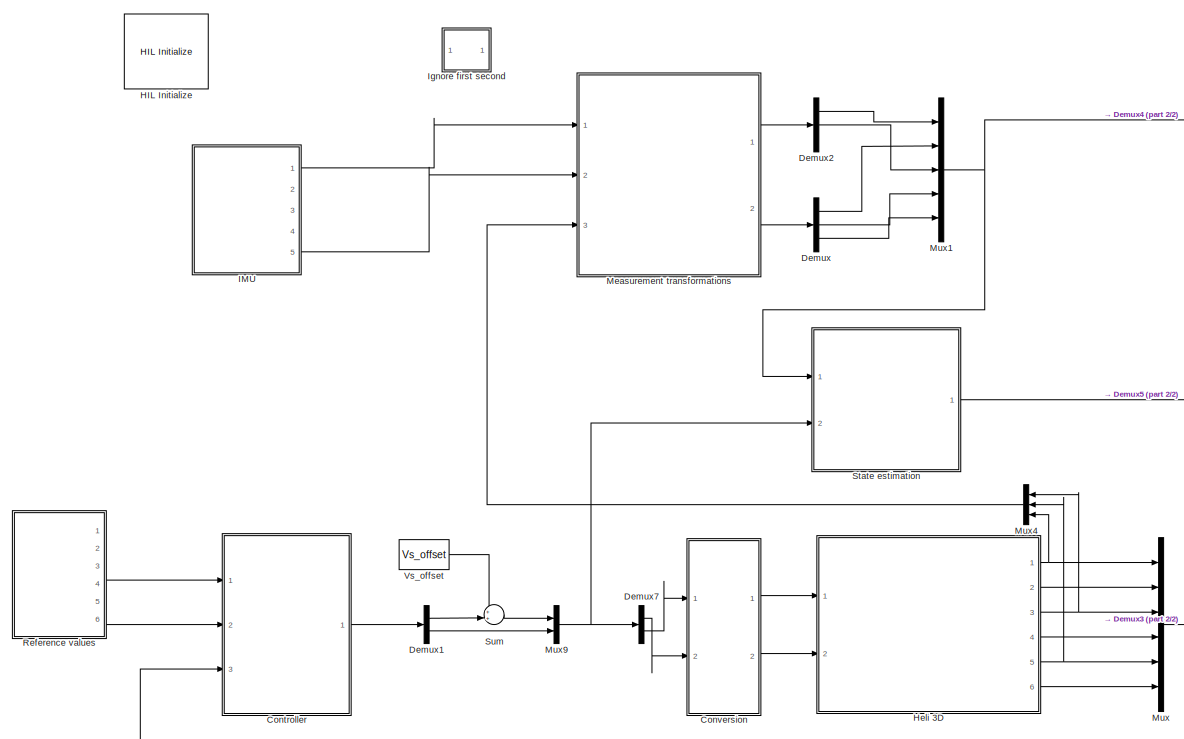
[diagram: root canvas - part 1/2, center side, full height]
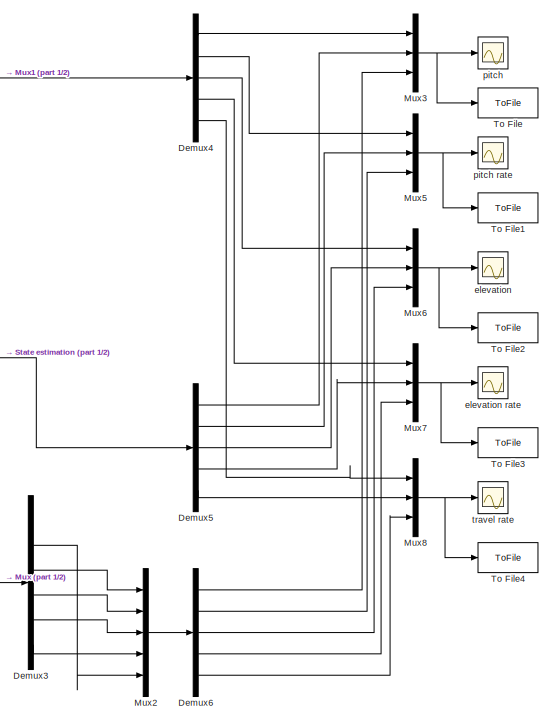
[diagram: root canvas - part 2/2, right side, full height]
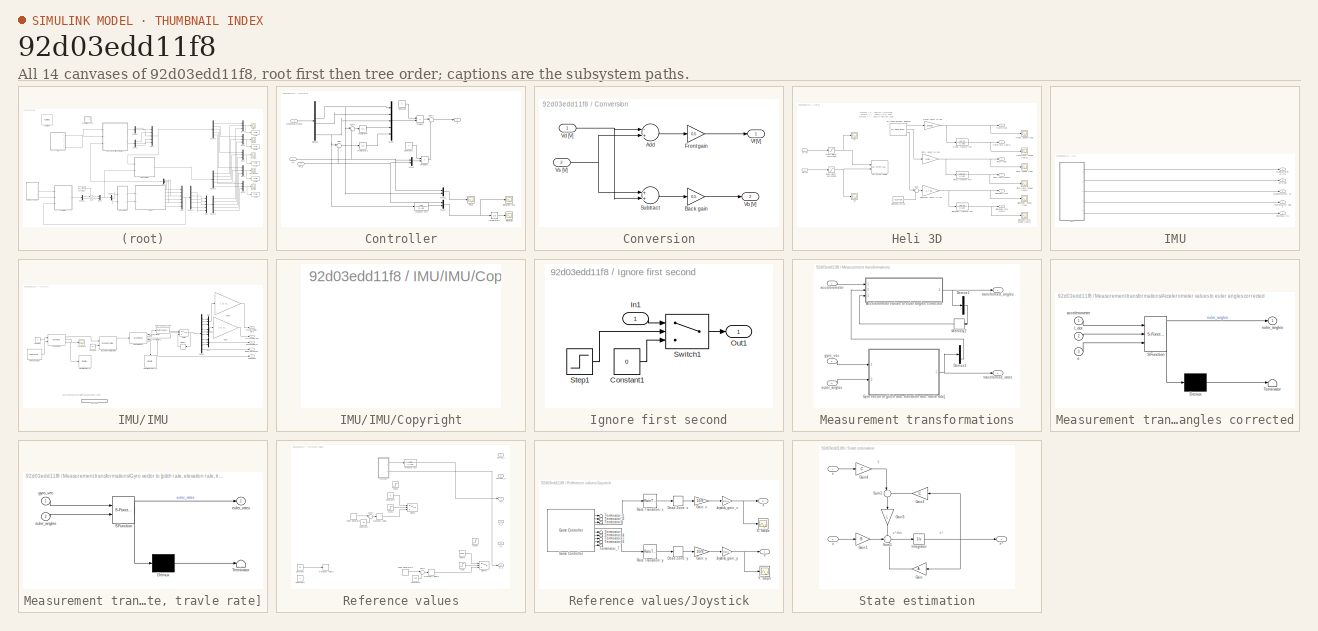
[diagram: thumbnail index - all 14 canvases of the model, root first then tree order]
MODEL slx_92d03edd11f8
KIND model
CONFIG AbsTol = auto
CONFIG FixedStep = 0.002
CONFIG MaxStep = auto
CONFIG MinStep = auto
CONFIG PostLoadFcn = qc_set_target_type(getConfigSet(bdroot, 'QUARC Default Target Configuration'));
CONFIG RelTol = 1e-3
CONFIG SampleTimeConstraint = Unconstrained
CONFIG Solver = ode1
CONFIG SolverMode = Auto
CONFIG SolverName = ode1
CONFIG StartTime = 0.0
CONFIG StopTime = inf
BLOCK [SubSystem] Controller
  Ports = [3, 1]
  RequestExecContextInheritance = off
  Variant = off
BLOCK [Constant] Controller/Constant
  Value = K
BLOCK [Constant] Controller/Constant1
  Value = F
BLOCK [Demux] Controller/Demux
  DisplayOption = bar
  Outputs = 6
  Ports = [1, 6]
BLOCK [Scope] Controller/Elevation
  Ports = [1]
  ScopeSpecificationString = Simulink.scopes.TimeScopeBlockCfg('CurrentConfiguration', extmgr.ConfigurationSet(extmgr.Configuration('Core','General UI',true),extmgr.Configuration('Core','Source UI',true),extmgr.Configuration('Sources','WiredSimulink',true,'DataLoggingVariableName','ScopeData2'),extmgr.Configuration('Visuals','Time Domain',true,'SerializedDisplays',{struct('MinYLimReal','-0.79865','MaxYLimReal','2.37607','YLab...<+1488ch>
BLOCK [Scope] Controller/Elevation rate
  Ports = [1]
  ScopeSpecificationString = Simulink.scopes.TimeScopeBlockCfg('CurrentConfiguration', extmgr.ConfigurationSet(extmgr.Configuration('Core','General UI',true),extmgr.Configuration('Core','Source UI',true),extmgr.Configuration('Sources','WiredSimulink',true,'DataLoggingVariableName','ScopeData1'),extmgr.Configuration('Visuals','Time Domain',true,'SerializedDisplays',{struct('MinYLimReal','-3.81189','MaxYLimReal','0.55908','YLab...<+1450ch>
BLOCK [Integrator] Controller/Integrator
  Ports = [1, 1]
BLOCK [Integrator] Controller/Integrator1
  Ports = [1, 1]
BLOCK [Integrator] Controller/Integrator2
  Ports = [1, 1]
BLOCK [Inport] Controller/Measured states
  IconDisplay = Port number
  Port = 3
BLOCK [Mux] Controller/Mux1
  DisplayOption = bar
  Inputs = 2
  Ports = [2, 1]
BLOCK [Mux] Controller/Mux2
  DisplayOption = bar
  Inputs = 5
  Ports = [5, 1]
BLOCK [Mux] Controller/Mux3
  DisplayOption = bar
  Inputs = 2
  Ports = [2, 1]
BLOCK [Mux] Controller/Mux4
  DisplayOption = bar
  Inputs = 2
  Ports = [2, 1]
BLOCK [Scope] Controller/Pitch
  Ports = [1]
  ScopeSpecificationString = Simulink.scopes.TimeScopeBlockCfg('CurrentConfiguration', extmgr.ConfigurationSet(extmgr.Configuration('Core','General UI',true),extmgr.Configuration('Core','Source UI',true),extmgr.Configuration('Sources','WiredSimulink',true,'DataLoggingVariableName','ScopeData1'),extmgr.Configuration('Visuals','Time Domain',true,'SerializedDisplays',{struct('MinYLimReal','-0.24045','MaxYLimReal','1.99533','YLab...<+1473ch>
BLOCK [Product] Controller/Product
  InputSameDT = off
  Multiplication = Matrix(*)
  OutDataTypeStr = Inherit: Inherit via internal rule
  Ports = [2, 1]
  RndMeth = Floor
  SaturateOnIntegerOverflow = off
BLOCK [Product] Controller/Product1
  InputSameDT = off
  Multiplication = Matrix(*)
  OutDataTypeStr = Inherit: Inherit via internal rule
  Ports = [2, 1]
  RndMeth = Floor
  SaturateOnIntegerOverflow = off
BLOCK [Sum] Controller/Sum
  IconShape = round
  InputSameDT = off
  Inputs = |+-
  OutDataTypeStr = Inherit: Inherit via internal rule
  Ports = [2, 1]
  SaturateOnIntegerOverflow = off
BLOCK [Sum] Controller/Sum1
  IconShape = round
  InputSameDT = off
  Inputs = |-+
  OutDataTypeStr = Inherit: Inherit via internal rule
  Ports = [2, 1]
  SaturateOnIntegerOverflow = off
BLOCK [Sum] Controller/Sum2
  IconShape = round
  InputSameDT = off
  Inputs = |+-
  OutDataTypeStr = Inherit: Inherit via internal rule
  Ports = [2, 1]
  SaturateOnIntegerOverflow = off
BLOCK [TransferFcn] Controller/Transfer Fcn
  Denominator = [1 10]
  Numerator = [10]
BLOCK [Inport] Controller/e*_c
  IconDisplay = Port number
  Port = 2
BLOCK [Inport] Controller/p_c
  IconDisplay = Port number
BLOCK [Outport] Controller/u
  IconDisplay = Port number
BLOCK [SubSystem] Conversion
  Ports = [2, 2]
  RequestExecContextInheritance = off
  Variant = off
BLOCK [Sum] Conversion/Add
  InputSameDT = off
  Inputs = -+
  OutDataTypeStr = Inherit: Inherit via internal rule
  Ports = [2, 1]
  SaturateOnIntegerOverflow = off
BLOCK [Gain] Conversion/Back gain
  Gain = 0.5
  OutDataTypeStr = Inherit: Inherit via internal rule
  ParamDataTypeStr = Inherit: Inherit via internal rule
  SaturateOnIntegerOverflow = off
BLOCK [Gain] Conversion/Front gain
  Gain = 0.5
  OutDataTypeStr = Inherit: Inherit via internal rule
  ParamDataTypeStr = Inherit: Inherit via internal rule
  SaturateOnIntegerOverflow = off
BLOCK [Sum] Conversion/Subtract
  InputSameDT = off
  OutDataTypeStr = Inherit: Inherit via internal rule
  Ports = [2, 1]
  SaturateOnIntegerOverflow = off
BLOCK [Outport] Conversion/Vb [V]
  IconDisplay = Port number
  Port = 2
BLOCK [Inport] Conversion/Vd [V]
  IconDisplay = Port number
BLOCK [Outport] Conversion/Vf [V]
  IconDisplay = Port number
BLOCK [Inport] Conversion/Vs [V]
  IconDisplay = Port number
  Port = 2
BLOCK [Demux] Demux
  DisplayOption = bar
  Outputs = 3
  Ports = [1, 3]
BLOCK [Demux] Demux1
  DisplayOption = bar
  Outputs = 2
  Ports = [1, 2]
BLOCK [Demux] Demux2
  DisplayOption = bar
  Outputs = 3
  Ports = [1, 3]
BLOCK [Demux] Demux3
  DisplayOption = bar
  Outputs = 6
  Ports = [1, 6]
BLOCK [Demux] Demux4
  DisplayOption = bar
  Outputs = 5
  Ports = [1, 5]
BLOCK [Demux] Demux5
  DisplayOption = bar
  Outputs = 5
  Ports = [1, 5]
BLOCK [Demux] Demux6
  DisplayOption = bar
  Outputs = 5
  Ports = [1, 5]
BLOCK [Demux] Demux7
  DisplayOption = bar
  Outputs = 2
  Ports = [1, 2]
BLOCK [Reference] HIL Initialize  REF=quarc_library/Data Acquisition/Generic/Configuration/HIL Initialize
  AttributesFormatString = %<object_name> (%<board_type>-%<board_number>)
  Ports = []
  Priority = -99
  SourceBlock = quarc_library/Data Acquisition/Generic/Configuration/HIL Initialize
  SourceType = HIL Initialize
  UserDataPersistent = on
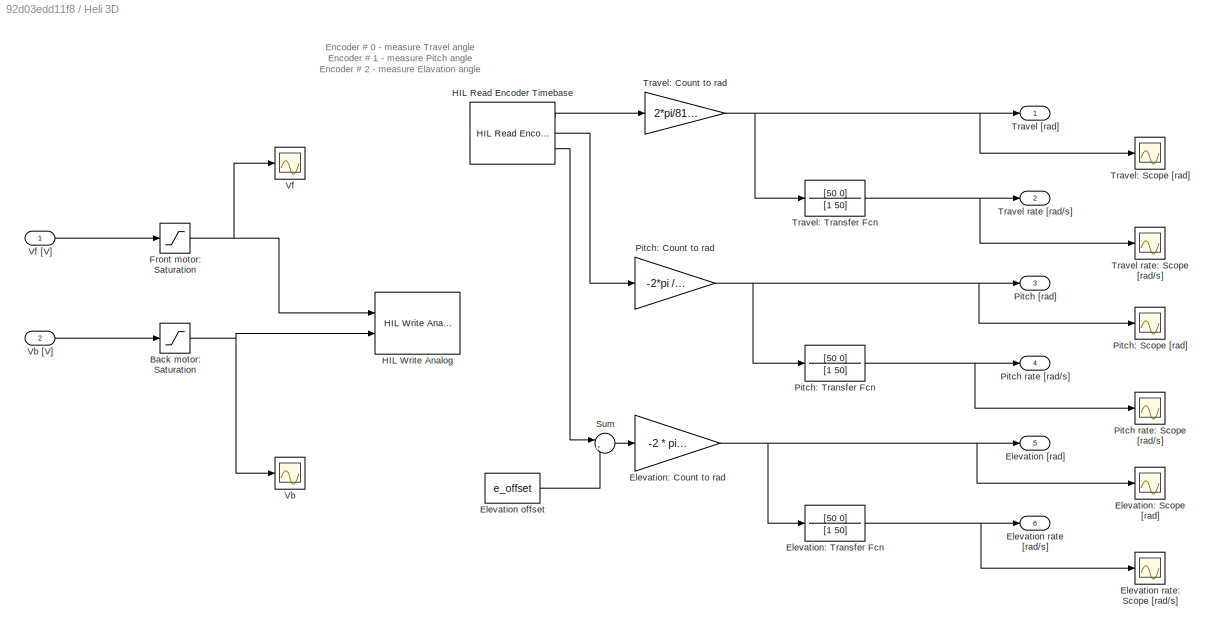
BLOCK [SubSystem] Heli 3D
  Ports = [2, 6]
  RequestExecContextInheritance = off
  Variant = off
BLOCK [Saturate] Heli 3D/Back motor: Saturation
  InputPortMap = u0
  LowerLimit = -5
  Ports = [1, 1]
  UpperLimit = 5
BLOCK [Outport] Heli 3D/Elevation [rad]
  IconDisplay = Port number
  Port = 5
BLOCK [Constant] Heli 3D/Elevation offset
  Value = e_offset
BLOCK [Outport] Heli 3D/Elevation rate [rad//s]
  IconDisplay = Port number
  Port = 6
BLOCK [Scope] Heli 3D/Elevation rate: Scope [rad//s]
  Ports = [1]
  ScopeSpecificationString = Simulink.scopes.TimeScopeBlockCfg('CurrentConfiguration', extmgr.ConfigurationSet(extmgr.Configuration('Core','General UI',true),extmgr.Configuration('Core','Source UI',true),extmgr.Configuration('Sources','WiredSimulink',true,'DataLoggingVariableName','ScopeData13','DataLoggingSaveFormat','StructureWithTime','DataLoggingLimitDataPoints',true,'DataLoggingDecimation','1','DataLoggingDecimateData',t...<+1740ch>
BLOCK [Gain] Heli 3D/Elevation: Count to rad
  Gain = -2 * pi /4096
  OutDataTypeStr = Inherit: Inherit via internal rule
  ParamDataTypeStr = Inherit: Inherit via internal rule
  SaturateOnIntegerOverflow = off
BLOCK [Scope] Heli 3D/Elevation: Scope [rad]
  Ports = [1]
  ScopeSpecificationString = Simulink.scopes.TimeScopeBlockCfg('CurrentConfiguration', extmgr.ConfigurationSet(extmgr.Configuration('Core','General UI',true),extmgr.Configuration('Core','Source UI',true),extmgr.Configuration('Sources','WiredSimulink',true,'DataLoggingVariableName','ScopeData12','DataLoggingSaveFormat','StructureWithTime','DataLoggingLimitDataPoints',true,'DataLoggingDecimation','1','DataLoggingDecimateData',t...<+1766ch>
BLOCK [TransferFcn] Heli 3D/Elevation: Transfer Fcn
  Denominator = [1 50]
  Numerator = [50 0]
BLOCK [Saturate] Heli 3D/Front motor: Saturation
  InputPortMap = u0
  LowerLimit = -5
  Ports = [1, 1]
  UpperLimit = 5
BLOCK [Reference] Heli 3D/HIL Read Encoder Timebase  REF=quarc_library/Data Acquisition/Generic/Timebases/HIL Read Encoder
Timebase
  AttributesFormatString = (%<object_name>)
  Ports = [0, 3]
  SourceBlock = quarc_library/Data Acquisition/Generic/Timebases/HIL Read Encoder\nTimebase
  SourceType = HIL Read Encoder Timebase
  UserDataPersistent = on
BLOCK [Reference] Heli 3D/HIL Write Analog  REF=quarc_library/Data Acquisition/Generic/Immediate I//O/HIL Write Analog
  AttributesFormatString = (%<object_name>)
  Ports = [2]
  SourceBlock = quarc_library/Data Acquisition/Generic/Immediate I//O/HIL Write Analog
  SourceType = HIL Write Analog
  UserDataPersistent = on
BLOCK [Outport] Heli 3D/Pitch [rad]
  IconDisplay = Port number
  Port = 3
BLOCK [Outport] Heli 3D/Pitch rate [rad//s]
  IconDisplay = Port number
  Port = 4
BLOCK [Scope] Heli 3D/Pitch rate: Scope [rad//s]
  Ports = [1]
  ScopeSpecificationString = Simulink.scopes.TimeScopeBlockCfg('CurrentConfiguration', extmgr.ConfigurationSet(extmgr.Configuration('Core','General UI',true),extmgr.Configuration('Core','Source UI',true),extmgr.Configuration('Sources','WiredSimulink',true,'DataLoggingVariableName','ScopeData11','DataLoggingSaveFormat','StructureWithTime','DataLoggingLimitDataPoints',true,'DataLoggingDecimation','1','DataLoggingDecimateData',t...<+1672ch>
BLOCK [Gain] Heli 3D/Pitch: Count to rad
  Gain = -2*pi /4096
  OutDataTypeStr = Inherit: Inherit via internal rule
  ParamDataTypeStr = Inherit: Inherit via internal rule
  SaturateOnIntegerOverflow = off
BLOCK [Scope] Heli 3D/Pitch: Scope [rad]
  Ports = [1]
  ScopeSpecificationString = Simulink.scopes.TimeScopeBlockCfg('CurrentConfiguration', extmgr.ConfigurationSet(extmgr.Configuration('Core','General UI',true),extmgr.Configuration('Core','Source UI',true),extmgr.Configuration('Sources','WiredSimulink',true,'DataLoggingVariableName','ScopeData10','DataLoggingSaveFormat','StructureWithTime','DataLoggingLimitDataPoints',true,'DataLoggingDecimation','1','DataLoggingDecimateData',t...<+1671ch>
BLOCK [TransferFcn] Heli 3D/Pitch: Transfer Fcn
  Denominator = [1 50]
  Numerator = [50 0]
BLOCK [Sum] Heli 3D/Sum
  IconShape = round
  InputSameDT = off
  Inputs = |+-
  OutDataTypeStr = Inherit: Inherit via internal rule
  Ports = [2, 1]
  SaturateOnIntegerOverflow = off
BLOCK [Outport] Heli 3D/Travel [rad]
  IconDisplay = Port number
BLOCK [Outport] Heli 3D/Travel rate [rad//s]
  IconDisplay = Port number
  Port = 2
BLOCK [Scope] Heli 3D/Travel rate: Scope [rad//s]
  Ports = [1]
  ScopeSpecificationString = Simulink.scopes.TimeScopeBlockCfg('CurrentConfiguration', extmgr.ConfigurationSet(extmgr.Configuration('Core','General UI',true),extmgr.Configuration('Core','Source UI',true),extmgr.Configuration('Sources','WiredSimulink',true,'DataLoggingVariableName','ScopeData9','DataLoggingSaveFormat','StructureWithTime','DataLoggingLimitDataPoints',true,'DataLoggingDecimation','1','DataLoggingDecimateData',tr...<+1652ch>
BLOCK [Gain] Heli 3D/Travel: Count to rad
  Gain = 2*pi/8192
  OutDataTypeStr = Inherit: Inherit via internal rule
  ParamDataTypeStr = Inherit: Inherit via internal rule
  SaturateOnIntegerOverflow = off
BLOCK [Scope] Heli 3D/Travel: Scope [rad]
  Ports = [1]
  ScopeSpecificationString = Simulink.scopes.TimeScopeBlockCfg('CurrentConfiguration', extmgr.ConfigurationSet(extmgr.Configuration('Core','General UI',true),extmgr.Configuration('Core','Source UI',true),extmgr.Configuration('Sources','WiredSimulink',true,'DataLoggingVariableName','ScopeData8','DataLoggingSaveFormat','StructureWithTime','DataLoggingLimitDataPoints',true,'DataLoggingDecimation','1','DataLoggingDecimateData',tr...<+1672ch>
BLOCK [TransferFcn] Heli 3D/Travel: Transfer Fcn
  Denominator = [1 50]
  Numerator = [50 0]
BLOCK [Scope] Heli 3D/Vb
  Ports = [1]
  ScopeSpecificationString = Simulink.scopes.TimeScopeBlockCfg('CurrentConfiguration', extmgr.ConfigurationSet(extmgr.Configuration('Core','General UI',true),extmgr.Configuration('Core','Source UI',true),extmgr.Configuration('Sources','WiredSimulink',true,'DataLoggingVariableName','ScopeData2'),extmgr.Configuration('Visuals','Time Domain',true,'SerializedDisplays',{struct('MinYLimReal','-0.38643','MaxYLimReal','5.59849','YLab...<+1438ch>
BLOCK [Inport] Heli 3D/Vb [V]
  IconDisplay = Port number
  Port = 2
BLOCK [Scope] Heli 3D/Vf
  Ports = [1]
  ScopeSpecificationString = Simulink.scopes.TimeScopeBlockCfg('CurrentConfiguration', extmgr.ConfigurationSet(extmgr.Configuration('Core','General UI',true),extmgr.Configuration('Core','Source UI',true),extmgr.Configuration('Sources','WiredSimulink',true,'DataLoggingVariableName','ScopeData1'),extmgr.Configuration('Visuals','Time Domain',true,'SerializedDisplays',{struct('MinYLimReal','-0.2096','MaxYLimReal','5.57884','YLabe...<+1477ch>
BLOCK [Inport] Heli 3D/Vf [V]
  IconDisplay = Port number
BLOCK [SubSystem] IMU
  Ports = [0, 5]
  RequestExecContextInheritance = off
  Variant = off
BLOCK [Outport] IMU/Accelerometer, m//s^2
  IconDisplay = Port number
BLOCK [SubSystem] IMU/IMU
  Ports = [0, 5]
  RequestExecContextInheritance = off
  Variant = off
BLOCK [Scope] IMU/IMU/Connected
  Ports = [1]
  ScopeSpecificationString = Simulink.scopes.TimeScopeBlockCfg('CurrentConfiguration', extmgr.ConfigurationSet(extmgr.Configuration('Core','General UI',true),extmgr.Configuration('Core','Source UI',true),extmgr.Configuration('Sources','WiredSimulink',true,'DataLoggingSaveFormat','StructureWithTime','DataLoggingLimitDataPoints',true,'DataLoggingDecimation','1','DataLoggingDecimateData',true,'DataLoggingVariableName','ScopeData...<+909ch>
BLOCK [Constant] IMU/IMU/Constant
  Value = 0
BLOCK [Constant] IMU/IMU/Constant1
  Value = 65
BLOCK [SubSystem] IMU/IMU/<copyright redacted>
  OpenFcn = web('http://www.quanser.com/');
  Permissions = NoReadOrWrite
  PermitHierarchicalResolution = None
  Ports = []
  RequestExecContextInheritance = off
  Variant = off
BLOCK [DataTypeConversion] IMU/IMU/Data Type Conversion
  OutDataTypeStr = double
  RndMeth = Floor
  SaturateOnIntegerOverflow = off
BLOCK [Demux] IMU/IMU/Demux
  DisplayOption = bar
  Outputs = 10
  Ports = [1, 10]
BLOCK [Gain] IMU/IMU/Gain1
  Gain = [ 0, 0, 1; 0, 1, 0; -1, 0, 0]
  Multiplication = Matrix(K*u) (u vector)
  OutDataTypeStr = Inherit: Inherit via internal rule
  ParamDataTypeStr = Inherit: Inherit via internal rule
  SaturateOnIntegerOverflow = off
BLOCK [Gain] IMU/IMU/Gain2
  Gain = [ 0, 0, 1; 0, 1, 0; -1, 0, 0]
  Multiplication = Matrix(K*u) (u vector)
  OutDataTypeStr = Inherit: Inherit via internal rule
  ParamDataTypeStr = Inherit: Inherit via internal rule
  SaturateOnIntegerOverflow = off
BLOCK [Memory] IMU/IMU/Memory
  X0 = [0 0 0 0 0 0 0 0 0 0]
BLOCK [Mux] IMU/IMU/Mux
  DisplayOption = bar
  Inputs = 3
  Ports = [3, 1]
BLOCK [Mux] IMU/IMU/Mux1
  DisplayOption = bar
  Inputs = 3
  Ports = [3, 1]
BLOCK [Mux] IMU/IMU/Mux2
  DisplayOption = bar
  Inputs = 3
  Ports = [3, 1]
BLOCK [Outport] IMU/IMU/New data, 0//1
  IconDisplay = Port number
  Port = 5
BLOCK [Reference] IMU/IMU/Stop with Call Error  REF=quarc_library/Sinks/Error Handling/Stop with Error
  Ports = [1]
  SourceBlock = quarc_library/Sinks/Error Handling/Stop with Error
  SourceType = Stop with Error
BLOCK [Reference] IMU/IMU/Stop with Read Error  REF=quarc_library/Sinks/Error Handling/Stop with Error
  Ports = [1]
  SourceBlock = quarc_library/Sinks/Error Handling/Stop with Error
  SourceType = Stop with Error
BLOCK [Reference] IMU/IMU/Stream Call1  REF=quarc_library/Communications/Intermediate/Stream Call
  Ports = [2, 3]
  SourceBlock = quarc_library/Communications/Intermediate/Stream Call
  SourceType = Stream Call
BLOCK [Reference] IMU/IMU/Stream Formatted Write  REF=quarc_library/Communications/Intermediate/Stream Formatted
Write
  Ports = [2, 5]
  SourceBlock = quarc_library/Communications/Intermediate/Stream Formatted\nWrite
  SourceType = Stream Formatted Write
BLOCK [Reference] IMU/IMU/Stream Read1  REF=quarc_library/Communications/Intermediate/Stream Read
  Ports = [1, 5]
  SourceBlock = quarc_library/Communications/Intermediate/Stream Read
  SourceType = Stream Read
BLOCK [Reference] IMU/IMU/String Constant  REF=quarc_library/Strings/String Constant
  AttributesFormatString = "serial://IMU:12?baud=115200,word=8,parity=none,stop=1"
  Ports = [0, 1]
  SourceBlock = quarc_library/Strings/String Constant
  SourceType = String Constant
BLOCK [Switch] IMU/IMU/Switch
  Criteria = u2 > Threshold
  InputSameDT = off
  SaturateOnIntegerOverflow = off
BLOCK [Terminator] IMU/IMU/Terminator
BLOCK [Terminator] IMU/IMU/Terminator1
BLOCK [Outport] IMU/IMU/accelerometer, m//s^2
  IconDisplay = Port number
BLOCK [Outport] IMU/IMU/gyroscope, rad//s
  IconDisplay = Port number
  Port = 2
BLOCK [Outport] IMU/IMU/magnetometer, uT
  IconDisplay = Port number
  Port = 3
BLOCK [Outport] IMU/IMU/temperature, deg C
  IconDisplay = Port number
  Port = 4
BLOCK [Outport] IMU/Magnetometer, uT
  IconDisplay = Port number
  Port = 2
BLOCK [Outport] IMU/New data, 0//1
  IconDisplay = Port number
  Port = 4
BLOCK [Outport] IMU/Temperature, deg C
  IconDisplay = Port number
  Port = 3
BLOCK [Outport] IMU/gyro_vec 
  IconDisplay = Port number
  Port = 5
BLOCK [SubSystem] Ignore first second
  Ports = [1, 1]
  RequestExecContextInheritance = off
  Variant = off
BLOCK [Constant] Ignore first second/Constant1
  Value = 0
BLOCK [Inport] Ignore first second/In1
  IconDisplay = Port number
BLOCK [Outport] Ignore first second/Out1
  IconDisplay = Port number
BLOCK [Step] Ignore first second/Step1
  SampleTime = 0
BLOCK [Switch] Ignore first second/Switch1
  Criteria = u2 > Threshold
  InputSameDT = off
  SaturateOnIntegerOverflow = off
BLOCK [SubSystem] Measurement transformations
  Ports = [3, 2]
  RequestExecContextInheritance = off
  Variant = off
BLOCK [SubSystem] Measurement transformations/Accelerometer values to euler angles corrected
  ErrorFcn = Stateflow.Translate.translate
  PermitHierarchicalResolution = ExplicitOnly
  Ports = [3, 1]
  RequestExecContextInheritance = off
  SFBlockType = MATLAB Function
  TreatAsAtomicUnit = on
  Variant = off
BLOCK [Demux] Measurement transformations/Accelerometer values to euler angles corrected/ Demux 
  Outputs = 1
  Ports = [1, 1]
BLOCK [S-Function] Measurement transformations/Accelerometer values to euler angles corrected/ SFunction 
  EnableBusSupport = on
  FunctionName = sf_sfun
  PortCounts = [3 2]
  Ports = [3, 2]
  SFunctionDeploymentMode = off
  Tag = Stateflow S-Function heli_q8 3
BLOCK [Terminator] Measurement transformations/Accelerometer values to euler angles corrected/ Terminator 
BLOCK [Inport] Measurement transformations/Accelerometer values to euler angles corrected/accelerometer
  IconDisplay = Port number
BLOCK [Inport] Measurement transformations/Accelerometer values to euler angles corrected/e
  IconDisplay = Port number
  Port = 3
BLOCK [Outport] Measurement transformations/Accelerometer values to euler angles corrected/euler_angles
  IconDisplay = Port number
BLOCK [Inport] Measurement transformations/Accelerometer values to euler angles corrected/l_dot
  IconDisplay = Port number
  Port = 2
BLOCK [Demux] Measurement transformations/Demux1
  DisplayOption = bar
  Outputs = 3
  Ports = [1, 3]
BLOCK [Demux] Measurement transformations/Demux2
  DisplayOption = bar
  Outputs = 3
  Ports = [1, 3]
BLOCK [SubSystem] Measurement transformations/Gyro vector to [pitch rate, elevation rate, travle rate]
  ErrorFcn = Stateflow.Translate.translate
  PermitHierarchicalResolution = ExplicitOnly
  Ports = [2, 1]
  RequestExecContextInheritance = off
  SFBlockType = MATLAB Function
  TreatAsAtomicUnit = on
  Variant = off
BLOCK [Demux] Measurement transformations/Gyro vector to [pitch rate, elevation rate, travle rate]/ Demux 
  Outputs = 1
  Ports = [1, 1]
BLOCK [S-Function] Measurement transformations/Gyro vector to [pitch rate, elevation rate, travle rate]/ SFunction 
  EnableBusSupport = on
  FunctionName = sf_sfun
  PortCounts = [2 2]
  Ports = [2, 2]
  SFunctionDeploymentMode = off
  Tag = Stateflow S-Function heli_q8 2
BLOCK [Terminator] Measurement transformations/Gyro vector to [pitch rate, elevation rate, travle rate]/ Terminator 
BLOCK [Inport] Measurement transformations/Gyro vector to [pitch rate, elevation rate, travle rate]/euler_angles
  IconDisplay = Port number
  Port = 2
BLOCK [Outport] Measurement transformations/Gyro vector to [pitch rate, elevation rate, travle rate]/euler_rates
  IconDisplay = Port number
BLOCK [Inport] Measurement transformations/Gyro vector to [pitch rate, elevation rate, travle rate]/gyro_vec
  IconDisplay = Port number
BLOCK [Memory] Measurement transformations/Memory2
BLOCK [Inport] Measurement transformations/accelerometer
  IconDisplay = Port number
BLOCK [Inport] Measurement transformations/euler_angles
  IconDisplay = Port number
  Port = 3
BLOCK [Inport] Measurement transformations/gyro_vec
  IconDisplay = Port number
  Port = 2
BLOCK [Outport] Measurement transformations/transformed_angles
  IconDisplay = Port number
BLOCK [Outport] Measurement transformations/transformed_rates
  IconDisplay = Port number
  Port = 2
BLOCK [Mux] Mux
  DisplayOption = bar
  Inputs = 6
  Ports = [6, 1]
BLOCK [Mux] Mux1
  DisplayOption = bar
  Inputs = 5
  Ports = [5, 1]
BLOCK [Mux] Mux2
  DisplayOption = bar
  Inputs = 5
  Ports = [5, 1]
BLOCK [Mux] Mux3
  DisplayOption = bar
  Inputs = 3
  Ports = [3, 1]
BLOCK [Mux] Mux4
  DisplayOption = bar
  Inputs = 3
  Ports = [3, 1]
BLOCK [Mux] Mux5
  DisplayOption = bar
  Inputs = 3
  Ports = [3, 1]
BLOCK [Mux] Mux6
  DisplayOption = bar
  Inputs = 3
  Ports = [3, 1]
BLOCK [Mux] Mux7
  DisplayOption = bar
  Inputs = 3
  Ports = [3, 1]
BLOCK [Mux] Mux8
  DisplayOption = bar
  Inputs = 3
  Ports = [3, 1]
BLOCK [Mux] Mux9
  DisplayOption = bar
  Inputs = 2
  Ports = [2, 1]
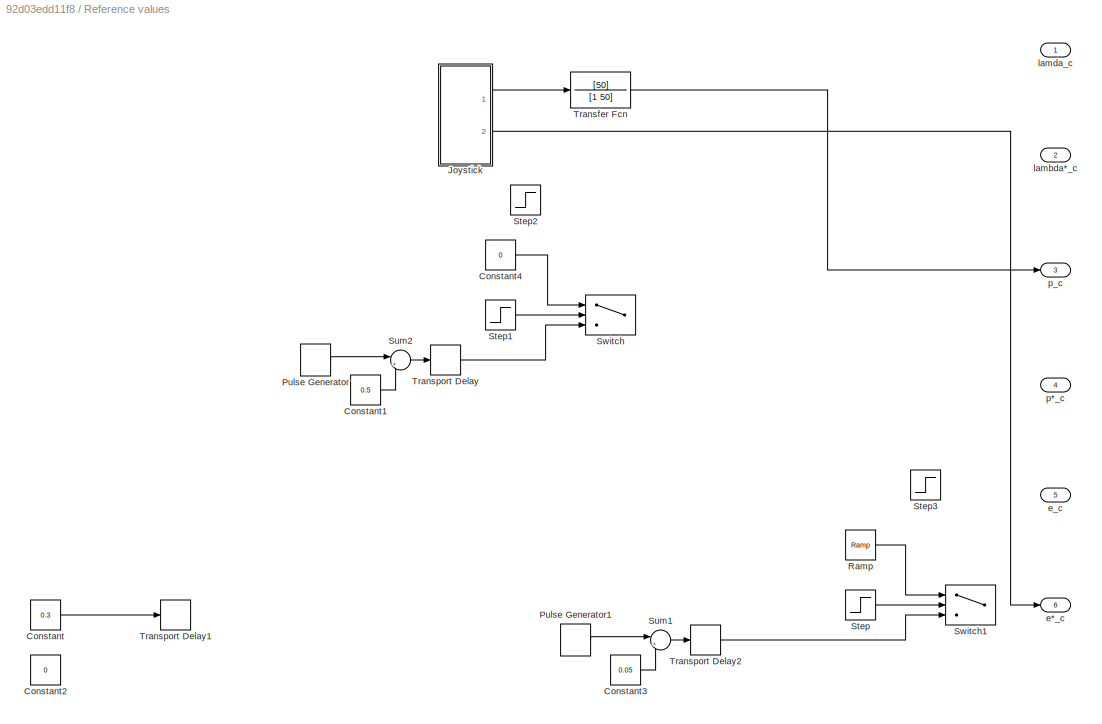
BLOCK [SubSystem] Reference values
  Ports = [0, 6]
  RequestExecContextInheritance = off
  Variant = off
BLOCK [Constant] Reference values/Constant
  Value = 0.3
BLOCK [Constant] Reference values/Constant1
  Value = 0.5
BLOCK [Constant] Reference values/Constant2
  Value = 0
BLOCK [Constant] Reference values/Constant3
  Value = 0.05
BLOCK [Constant] Reference values/Constant4
  Value = 0
BLOCK [SubSystem] Reference values/Joystick
  Ports = [0, 2]
  RequestExecContextInheritance = off
  Variant = off
BLOCK [DeadZone] Reference values/Joystick/Dead Zone: x
  LowerValue = -0.1
  UpperValue = 0.1
BLOCK [DeadZone] Reference values/Joystick/Dead Zone: y
  LowerValue = -0.12
  UpperValue = 0.12
BLOCK [Gain] Reference values/Joystick/Gain: x
  Gain = 10/9
  OutDataTypeStr = Inherit: Inherit via internal rule
  ParamDataTypeStr = Inherit: Inherit via internal rule
  SaturateOnIntegerOverflow = off
BLOCK [Gain] Reference values/Joystick/Gain: y
  Gain = 10/9
  OutDataTypeStr = Inherit: Inherit via internal rule
  ParamDataTypeStr = Inherit: Inherit via internal rule
  SaturateOnIntegerOverflow = off
BLOCK [Reference] Reference values/Joystick/Game Controller  REF=quarc_library/Devices/Peripherals/Target/Game Controller
  Ports = [0, 10]
  SourceBlock = quarc_library/Devices/Peripherals/Target/Game Controller
  SourceType = Game Controller
BLOCK [Gain] Reference values/Joystick/Joystick_gain_x
  Gain = Joystick_gain_x
  OutDataTypeStr = Inherit: Inherit via internal rule
  ParamDataTypeStr = Inherit: Inherit via internal rule
  SaturateOnIntegerOverflow = off
BLOCK [Gain] Reference values/Joystick/Joystick_gain_y
  Gain = Joystick_gain_y
  OutDataTypeStr = Inherit: Inherit via internal rule
  ParamDataTypeStr = Inherit: Inherit via internal rule
  SaturateOnIntegerOverflow = off
BLOCK [RateTransition] Reference values/Joystick/Rate Transition: x
BLOCK [RateTransition] Reference values/Joystick/Rate Transition: y
BLOCK [Terminator] Reference values/Joystick/Terminator
BLOCK [Terminator] Reference values/Joystick/Terminator1
BLOCK [Terminator] Reference values/Joystick/Terminator_1
BLOCK [Terminator] Reference values/Joystick/Terminator_2
BLOCK [Terminator] Reference values/Joystick/Terminator_4
BLOCK [Terminator] Reference values/Joystick/Terminator_5
BLOCK [Terminator] Reference values/Joystick/Terminator_6
BLOCK [Terminator] Reference values/Joystick/Terminator_7
BLOCK [Outport] Reference values/Joystick/X
  IconDisplay = Port number
BLOCK [Scope] Reference values/Joystick/X: Scope
  Ports = [1]
  ScopeSpecificationString = C++SS(StrPVP('Location','[894, 60, 1218, 301]'),StrPVP('Open','off'),StrPVP('ZoomMode','yonly'),MxPVP('AxesTitles',24,'struct(''axes1'',''%<SignalLabel>'')'),MxPVP('ScopeGraphics',28,'struct(''FigureColor'',''[0.5 0.5 0.5]'',''AxesColor'',''[0 0 0]'',''AxesTickColor'',''[1 1 1]'',''LineColors'',''[1 1 0;1 0 1;0 1 1;1 0 0;0 1 0;0 0 1]'',''LineStyles'',''-|-|-|-|-|-'',''LineWidths'',''[0.5 0.5 0.5 0...<+364ch>
BLOCK [Outport] Reference values/Joystick/Y
  IconDisplay = Port number
  Port = 2
BLOCK [Scope] Reference values/Joystick/Y: Scope
  Ports = [1]
  ScopeSpecificationString = Simulink.scopes.TimeScopeBlockCfg('CurrentConfiguration', extmgr.ConfigurationSet(extmgr.Configuration('Core','General UI',true),extmgr.Configuration('Core','Source UI',true),extmgr.Configuration('Sources','WiredSimulink',true,'DataLoggingVariableName','ScopeData5','DataLoggingSaveFormat','StructureWithTime','DataLoggingLimitDataPoints',true,'DataLoggingDecimation','1','DataLoggingDecimateData',tr...<+1789ch>
BLOCK [DiscretePulseGenerator] Reference values/Pulse Generator
  Amplitude = -1
  Period = 30
  Ports = [0, 1]
  PulseType = Time based
  PulseWidth = 50
BLOCK [DiscretePulseGenerator] Reference values/Pulse Generator1
  Amplitude = -0.1
  Period = 6
  Ports = [0, 1]
  PulseType = Time based
  PulseWidth = 50
BLOCK [Reference] Reference values/Ramp  REF=simulink/Sources/Ramp
  Ports = [0, 1]
  SourceBlock = simulink/Sources/Ramp
  SourceType = Ramp
BLOCK [Step] Reference values/Step
  SampleTime = 0
  Time = 30
BLOCK [Step] Reference values/Step1
  SampleTime = 0
  Time = 30
BLOCK [Step] Reference values/Step2
  After = 0.3
  SampleTime = 0
  Time = 5
BLOCK [Step] Reference values/Step3
  After = 0.05
  SampleTime = 0
  Time = 10
BLOCK [Sum] Reference values/Sum1
  IconShape = round
  InputSameDT = off
  Inputs = |++
  OutDataTypeStr = Inherit: Inherit via internal rule
  Ports = [2, 1]
  SaturateOnIntegerOverflow = off
BLOCK [Sum] Reference values/Sum2
  IconShape = round
  InputSameDT = off
  Inputs = |++
  OutDataTypeStr = Inherit: Inherit via internal rule
  Ports = [2, 1]
  SaturateOnIntegerOverflow = off
BLOCK [Switch] Reference values/Switch
  Criteria = u2 > Threshold
  InputSameDT = off
  SaturateOnIntegerOverflow = off
BLOCK [Switch] Reference values/Switch1
  Criteria = u2 > Threshold
  InputSameDT = off
  SaturateOnIntegerOverflow = off
BLOCK [TransferFcn] Reference values/Transfer Fcn
  Denominator = [1 50]
  Numerator = [50]
BLOCK [TransportDelay] Reference values/Transport Delay
  DelayTime = 5
  Ports = [1, 1]
BLOCK [TransportDelay] Reference values/Transport Delay1
  DelayTime = 5
  Ports = [1, 1]
BLOCK [TransportDelay] Reference values/Transport Delay2
  DelayTime = 5
  Ports = [1, 1]
BLOCK [Outport] Reference values/e*_c
  IconDisplay = Port number
  Port = 6
BLOCK [Outport] Reference values/e_c
  IconDisplay = Port number
  Port = 5
BLOCK [Outport] Reference values/lambda*_c
  IconDisplay = Port number
  Port = 2
BLOCK [Outport] Reference values/lamda_c
  IconDisplay = Port number
BLOCK [Outport] Reference values/p*_c
  IconDisplay = Port number
  Port = 4
BLOCK [Outport] Reference values/p_c
  IconDisplay = Port number
  Port = 3
BLOCK [SubSystem] State estimation
  Ports = [2, 1]
  RequestExecContextInheritance = off
  Variant = off
BLOCK [Gain] State estimation/Gain
  Gain = A
  Multiplication = Matrix(K*u)
  OutDataTypeStr = Inherit: Inherit via internal rule
  ParamDataTypeStr = Inherit: Inherit via internal rule
  SaturateOnIntegerOverflow = off
BLOCK [Gain] State estimation/Gain1
  Gain = B
  Multiplication = Matrix(K*u)
  OutDataTypeStr = Inherit: Inherit via internal rule
  ParamDataTypeStr = Inherit: Inherit via internal rule
  SaturateOnIntegerOverflow = off
BLOCK [Gain] State estimation/Gain2
  Gain = C
  Multiplication = Matrix(K*u)
  OutDataTypeStr = Inherit: Inherit via internal rule
  ParamDataTypeStr = Inherit: Inherit via internal rule
  SaturateOnIntegerOverflow = off
BLOCK [Gain] State estimation/Gain3
  Gain = L
  Multiplication = Matrix(K*u)
  OutDataTypeStr = Inherit: Inherit via internal rule
  ParamDataTypeStr = Inherit: Inherit via internal rule
  SaturateOnIntegerOverflow = off
BLOCK [Gain] State estimation/Gain4
  Gain = C
  Multiplication = Matrix(K*u)
  OutDataTypeStr = Inherit: Inherit via internal rule
  ParamDataTypeStr = Inherit: Inherit via internal rule
  SaturateOnIntegerOverflow = off
BLOCK [Integrator] State estimation/Integrator
  Ports = [1, 1]
BLOCK [Sum] State estimation/Sum1
  IconShape = round
  InputSameDT = off
  Inputs = +++
  OutDataTypeStr = Inherit: Inherit via internal rule
  Ports = [3, 1]
  SaturateOnIntegerOverflow = off
BLOCK [Sum] State estimation/Sum2
  IconShape = round
  InputSameDT = off
  Inputs = |+-
  OutDataTypeStr = Inherit: Inherit via internal rule
  Ports = [2, 1]
  SaturateOnIntegerOverflow = off
BLOCK [Inport] State estimation/u
  IconDisplay = Port number
  Port = 2
BLOCK [Inport] State estimation/x
  IconDisplay = Port number
BLOCK [Outport] State estimation/x^
  IconDisplay = Port number
BLOCK [Sum] Sum
  IconShape = round
  InputSameDT = off
  Inputs = ++|
  OutDataTypeStr = Inherit: Inherit via internal rule
  Ports = [2, 1]
  SaturateOnIntegerOverflow = off
BLOCK [ToFile] To File
  Filename = p3t4_sentripetal-acc_p.mat
  Ports = [1]
BLOCK [ToFile] To File1
  Filename = p3t4_sentripetal-acc_p-dot.mat
  Ports = [1]
BLOCK [ToFile] To File2
  Filename = p3t4_sentripetal-acc_e.mat
  Ports = [1]
BLOCK [ToFile] To File3
  Filename = p3t4_sentripetal-acc_e-dot.mat
  Ports = [1]
BLOCK [ToFile] To File4
  Filename = p3t4_sentripetal-acc_l-dot.mat
  Ports = [1]
BLOCK [Constant] Vs_offset
  Value = Vs_offset
BLOCK [Scope] elevation
  Ports = [1]
  ScopeSpecificationString = Simulink.scopes.TimeScopeBlockCfg('CurrentConfiguration', extmgr.ConfigurationSet(extmgr.Configuration('Core','General UI',true),extmgr.Configuration('Core','Source UI',true),extmgr.Configuration('Sources','WiredSimulink',true,'DataLoggingVariableName','ScopeData3'),extmgr.Configuration('Visuals','Time Domain',true,'SerializedDisplays',{struct('MinYLimReal','-0.89301','MaxYLimReal','0.60626','YLab...<+1488ch>
BLOCK [Scope] elevation rate
  Ports = [1]
  ScopeSpecificationString = Simulink.scopes.TimeScopeBlockCfg('CurrentConfiguration', extmgr.ConfigurationSet(extmgr.Configuration('Core','General UI',true),extmgr.Configuration('Core','Source UI',true),extmgr.Configuration('Sources','WiredSimulink',true,'DataLoggingVariableName','ScopeData4'),extmgr.Configuration('Visuals','Time Domain',true,'SerializedDisplays',{struct('MinYLimReal','-27.89085','MaxYLimReal','3.84646','YLa...<+1491ch>
BLOCK [Scope] pitch
  Ports = [1]
  ScopeSpecificationString = Simulink.scopes.TimeScopeBlockCfg('CurrentConfiguration', extmgr.ConfigurationSet(extmgr.Configuration('Core','General UI',true),extmgr.Configuration('Core','Source UI',true),extmgr.Configuration('Sources','WiredSimulink',true,'DataLoggingVariableName','ScopeData1'),extmgr.Configuration('Visuals','Time Domain',true,'SerializedDisplays',{struct('MinYLimReal','-0.94917','MaxYLimReal','1.04053','YLab...<+1486ch>
BLOCK [Scope] pitch rate
  Ports = [1]
  ScopeSpecificationString = Simulink.scopes.TimeScopeBlockCfg('CurrentConfiguration', extmgr.ConfigurationSet(extmgr.Configuration('Core','General UI',true),extmgr.Configuration('Core','Source UI',true),extmgr.Configuration('Sources','WiredSimulink',true,'DataLoggingVariableName','ScopeData2'),extmgr.Configuration('Visuals','Time Domain',true,'SerializedDisplays',{struct('MinYLimReal','-1.67226','MaxYLimReal','1.66307','YLab...<+1485ch>
BLOCK [Scope] travel rate
  Ports = [1]
  ScopeSpecificationString = Simulink.scopes.TimeScopeBlockCfg('CurrentConfiguration', extmgr.ConfigurationSet(extmgr.Configuration('Core','General UI',true),extmgr.Configuration('Core','Source UI',true),extmgr.Configuration('Sources','WiredSimulink',true,'DataLoggingVariableName','ScopeData5'),extmgr.Configuration('Visuals','Time Domain',true,'SerializedDisplays',{struct('MinYLimReal','1.59467','MaxYLimReal','2.91039','YLabe...<+1487ch>
ANNOTATION Heli 3D: Encoder # 0 - measure Travel angle Encoder # 1 - measure Pitch angle Encoder # 2 - measure Elavation angle
ANNOTATION IMU/IMU: Based on the QUARC Serial Interfacing Read Binary Demo
ANNOTATION State estimation: x^
ANNOTATION State estimation: x^ dot
ANNOTATION State estimation: y
LINE Controller/Constant1:1 -> Controller/Product1:1
LINE Controller/Constant:1 -> Controller/Product:1
NET Controller/Demux:3 -> Controller/Mux2:1, Controller/Mux3:2, Controller/Sum2:1
LINE Controller/Demux:4 -> Controller/Mux2:2
NET Controller/Demux:6 -> Controller/Mux2:3, Controller/Sum:1, Controller/Transfer Fcn:1
LINE Controller/Integrator1:1 -> Controller/Mux2:5
LINE Controller/Integrator2:1 -> Controller/Elevation:1
LINE Controller/Integrator:1 -> Controller/Mux2:4
LINE Controller/Measured states:1 -> Controller/Demux:1
LINE Controller/Mux1:1 -> Controller/Product1:2
LINE Controller/Mux2:1 -> Controller/Product:2
LINE Controller/Mux3:1 -> Controller/Pitch:1
NET Controller/Mux4:1 -> Controller/Elevation rate:1, Controller/Integrator2:1
LINE Controller/Product1:1 -> Controller/Sum1:2
LINE Controller/Product:1 -> Controller/Sum1:1
LINE Controller/Sum1:1 -> Controller/u:1
LINE Controller/Sum2:1 -> Controller/Integrator:1
LINE Controller/Sum:1 -> Controller/Integrator1:1
LINE Controller/Transfer Fcn:1 -> Controller/Mux4:2
NET Controller/e*_c:1 -> Controller/Mux1:2, Controller/Mux4:1, Controller/Sum:2
NET Controller/p_c:1 -> Controller/Mux1:1, Controller/Mux3:1, Controller/Sum2:2
LINE Controller:1 -> Demux1:1
LINE Conversion/Add:1 -> Conversion/Front gain:1
LINE Conversion/Back gain:1 -> Conversion/Vb [V]:1
LINE Conversion/Front gain:1 -> Conversion/Vf [V]:1
LINE Conversion/Subtract:1 -> Conversion/Back gain:1
NET Conversion/Vd [V]:1 -> Conversion/Add:1, Conversion/Subtract:2
NET Conversion/Vs [V]:1 -> Conversion/Add:2, Conversion/Subtract:1
LINE Conversion:1 -> Heli 3D:1
LINE Conversion:2 -> Heli 3D:2
LINE Demux1:1 -> Sum:2
LINE Demux1:2 -> Mux9:2
LINE Demux2:1 -> Mux1:1
LINE Demux2:2 -> Mux1:3
LINE Demux3:2 -> Mux2:5
LINE Demux3:3 -> Mux2:1
LINE Demux3:4 -> Mux2:2
LINE Demux3:5 -> Mux2:3
LINE Demux3:6 -> Mux2:4
LINE Demux4:1 -> Mux3:1
LINE Demux4:2 -> Mux5:1
LINE Demux4:3 -> Mux6:1
LINE Demux4:4 -> Mux7:1
LINE Demux4:5 -> Mux8:1
LINE Demux5:1 -> Mux3:2
LINE Demux5:2 -> Mux5:2
LINE Demux5:3 -> Mux6:2
LINE Demux5:4 -> Mux7:2
LINE Demux5:5 -> Mux8:2
LINE Demux6:1 -> Mux3:3
LINE Demux6:2 -> Mux5:3
LINE Demux6:3 -> Mux6:3
LINE Demux6:4 -> Mux7:3
LINE Demux6:5 -> Mux8:3
LINE Demux7:1 -> Conversion:2
LINE Demux7:2 -> Conversion:1
LINE Demux:1 -> Mux1:2
LINE Demux:2 -> Mux1:4
LINE Demux:3 -> Mux1:5
NET Heli 3D/Back motor: Saturation:1 -> Heli 3D/HIL Write Analog:2, Heli 3D/Vb:1
LINE Heli 3D/Elevation offset:1 -> Heli 3D/Sum:2
NET Heli 3D/Elevation: Count to rad:1 -> Heli 3D/Elevation [rad]:1, Heli 3D/Elevation: Scope [rad]:1, Heli 3D/Elevation: Transfer Fcn:1
NET Heli 3D/Elevation: Transfer Fcn:1 -> Heli 3D/Elevation rate [rad//s]:1, Heli 3D/Elevation rate: Scope [rad//s]:1
NET Heli 3D/Front motor: Saturation:1 -> Heli 3D/HIL Write Analog:1, Heli 3D/Vf:1
LINE Heli 3D/HIL Read Encoder Timebase:1 -> Heli 3D/Travel: Count to rad:1
LINE Heli 3D/HIL Read Encoder Timebase:2 -> Heli 3D/Pitch: Count to rad:1
LINE Heli 3D/HIL Read Encoder Timebase:3 -> Heli 3D/Sum:1
NET Heli 3D/Pitch: Count to rad:1 -> Heli 3D/Pitch [rad]:1, Heli 3D/Pitch: Scope [rad]:1, Heli 3D/Pitch: Transfer Fcn:1
NET Heli 3D/Pitch: Transfer Fcn:1 -> Heli 3D/Pitch rate [rad//s]:1, Heli 3D/Pitch rate: Scope [rad//s]:1
LINE Heli 3D/Sum:1 -> Heli 3D/Elevation: Count to rad:1
NET Heli 3D/Travel: Count to rad:1 -> Heli 3D/Travel [rad]:1, Heli 3D/Travel: Scope [rad]:1, Heli 3D/Travel: Transfer Fcn:1
NET Heli 3D/Travel: Transfer Fcn:1 -> Heli 3D/Travel rate [rad//s]:1, Heli 3D/Travel rate: Scope [rad//s]:1
LINE Heli 3D/Vb [V]:1 -> Heli 3D/Back motor: Saturation:1
LINE Heli 3D/Vf [V]:1 -> Heli 3D/Front motor: Saturation:1
NET Heli 3D:1 -> Mux4:3, Mux:1
LINE Heli 3D:2 -> Mux:2
NET Heli 3D:3 -> Mux4:1, Mux:3
LINE Heli 3D:4 -> Mux:4
NET Heli 3D:5 -> Mux4:2, Mux:5
LINE Heli 3D:6 -> Mux:6
LINE IMU/IMU/Constant1:1 -> IMU/IMU/Stream Formatted Write:2
LINE IMU/IMU/Constant:1 -> IMU/IMU/Stream Call1:1
LINE IMU/IMU/Data Type Conversion:1 -> IMU/IMU/Switch:1
LINE IMU/IMU/Demux:1 -> IMU/IMU/Mux:1
LINE IMU/IMU/Demux:10 -> IMU/IMU/temperature, deg C:1
LINE IMU/IMU/Demux:2 -> IMU/IMU/Mux:2
LINE IMU/IMU/Demux:3 -> IMU/IMU/Mux:3
LINE IMU/IMU/Demux:4 -> IMU/IMU/Mux1:1
LINE IMU/IMU/Demux:5 -> IMU/IMU/Mux1:2
LINE IMU/IMU/Demux:6 -> IMU/IMU/Mux1:3
LINE IMU/IMU/Demux:7 -> IMU/IMU/Mux2:1
LINE IMU/IMU/Demux:8 -> IMU/IMU/Mux2:2
LINE IMU/IMU/Demux:9 -> IMU/IMU/Mux2:3
LINE IMU/IMU/Gain1:1 -> IMU/IMU/gyroscope, rad//s:1
LINE IMU/IMU/Gain2:1 -> IMU/IMU/accelerometer, m//s^2:1
LINE IMU/IMU/Memory:1 -> IMU/IMU/Switch:3
LINE IMU/IMU/Mux1:1 -> IMU/IMU/Gain1:1
LINE IMU/IMU/Mux2:1 -> IMU/IMU/magnetometer, uT:1
LINE IMU/IMU/Mux:1 -> IMU/IMU/Gain2:1
LINE IMU/IMU/Stream Call1:1 -> IMU/IMU/Stream Formatted Write:1
LINE IMU/IMU/Stream Call1:2 -> IMU/IMU/Connected:1
LINE IMU/IMU/Stream Call1:3 -> IMU/IMU/Stop with Call Error:1
LINE IMU/IMU/Stream Formatted Write:1 -> IMU/IMU/Stream Read1:1
LINE IMU/IMU/Stream Read1:1 -> IMU/IMU/Terminator:1
LINE IMU/IMU/Stream Read1:2 -> IMU/IMU/Data Type Conversion:1
NET IMU/IMU/Stream Read1:3 -> IMU/IMU/New data, 0//1:1, IMU/IMU/Switch:2
LINE IMU/IMU/Stream Read1:4 -> IMU/IMU/Terminator1:1
LINE IMU/IMU/Stream Read1:5 -> IMU/IMU/Stop with Read Error:1
LINE IMU/IMU/String Constant:1 -> IMU/IMU/Stream Call1:2
NET IMU/IMU/Switch:1 -> IMU/IMU/Demux:1, IMU/IMU/Memory:1
LINE IMU/IMU:1 -> IMU/Accelerometer, m//s^2:1
LINE IMU/IMU:2 -> IMU/gyro_vec :1
LINE IMU/IMU:3 -> IMU/Magnetometer, uT:1
LINE IMU/IMU:4 -> IMU/Temperature, deg C:1
LINE IMU/IMU:5 -> IMU/New data, 0//1:1
LINE IMU:1 -> Measurement transformations:1
LINE IMU:5 -> Measurement transformations:2
LINE Ignore first second/Constant1:1 -> Ignore first second/Switch1:3
LINE Ignore first second/In1:1 -> Ignore first second/Switch1:1
LINE Ignore first second/Step1:1 -> Ignore first second/Switch1:2
LINE Ignore first second/Switch1:1 -> Ignore first second/Out1:1
NET Measurement transformations/Accelerometer values to euler angles corrected:1 -> Measurement transformations/Demux1:1, Measurement transformations/transformed_angles:1
LINE Measurement transformations/Demux1:2 -> Measurement transformations/Memory2:1
LINE Measurement transformations/Demux2:3 -> Measurement transformations/Accelerometer values to euler angles corrected:2
NET Measurement transformations/Gyro vector to [pitch rate, elevation rate, travle rate]:1 -> Measurement transformations/Demux2:1, Measurement transformations/transformed_rates:1
LINE Measurement transformations/Memory2:1 -> Measurement transformations/Accelerometer values to euler angles corrected:3
LINE Measurement transformations/accelerometer:1 -> Measurement transformations/Accelerometer values to euler angles corrected:1
LINE Measurement transformations/euler_angles:1 -> Measurement transformations/Gyro vector to [pitch rate, elevation rate, travle rate]:2
LINE Measurement transformations/gyro_vec:1 -> Measurement transformations/Gyro vector to [pitch rate, elevation rate, travle rate]:1
LINE Measurement transformations:1 -> Demux2:1
LINE Measurement transformations:2 -> Demux:1
NET Mux1:1 -> Demux4:1, State estimation:1
LINE Mux2:1 -> Demux6:1
NET Mux3:1 -> To File:1, pitch:1
LINE Mux4:1 -> Measurement transformations:3
NET Mux5:1 -> To File1:1, pitch rate:1
NET Mux6:1 -> To File2:1, elevation:1
NET Mux7:1 -> To File3:1, elevation rate:1
NET Mux8:1 -> To File4:1, travel rate:1
NET Mux9:1 -> Demux7:1, State estimation:2
NET Mux:1 -> Controller:3, Demux3:1
LINE Reference values/Constant1:1 -> Reference values/Sum2:2
LINE Reference values/Constant3:1 -> Reference values/Sum1:2
LINE Reference values/Constant4:1 -> Reference values/Switch:1
LINE Reference values/Constant:1 -> Reference values/Transport Delay1:1
LINE Reference values/Joystick/Dead Zone: x:1 -> Reference values/Joystick/Gain: x:1
LINE Reference values/Joystick/Dead Zone: y:1 -> Reference values/Joystick/Gain: y:1
LINE Reference values/Joystick/Gain: x:1 -> Reference values/Joystick/Joystick_gain_x:1
LINE Reference values/Joystick/Gain: y:1 -> Reference values/Joystick/Joystick_gain_y:1
LINE Reference values/Joystick/Game Controller:1 -> Reference values/Joystick/Terminator_1:1
LINE Reference values/Joystick/Game Controller:10 -> Reference values/Joystick/Terminator_7:1
LINE Reference values/Joystick/Game Controller:2 -> Reference values/Joystick/Terminator_2:1
LINE Reference values/Joystick/Game Controller:3 -> Reference values/Joystick/Terminator1:1
LINE Reference values/Joystick/Game Controller:4 -> Reference values/Joystick/Rate Transition: x:1
LINE Reference values/Joystick/Game Controller:5 -> Reference values/Joystick/Rate Transition: y:1
LINE Reference values/Joystick/Game Controller:6 -> Reference values/Joystick/Terminator:1
LINE Reference values/Joystick/Game Controller:7 -> Reference values/Joystick/Terminator_4:1
LINE Reference values/Joystick/Game Controller:8 -> Reference values/Joystick/Terminator_5:1
LINE Reference values/Joystick/Game Controller:9 -> Reference values/Joystick/Terminator_6:1
NET Reference values/Joystick/Joystick_gain_x:1 -> Reference values/Joystick/X: Scope:1, Reference values/Joystick/X:1
NET Reference values/Joystick/Joystick_gain_y:1 -> Reference values/Joystick/Y: Scope:1, Reference values/Joystick/Y:1
LINE Reference values/Joystick/Rate Transition: x:1 -> Reference values/Joystick/Dead Zone: x:1
LINE Reference values/Joystick/Rate Transition: y:1 -> Reference values/Joystick/Dead Zone: y:1
LINE Reference values/Joystick:1 -> Reference values/Transfer Fcn:1
LINE Reference values/Joystick:2 -> Reference values/e*_c:1
LINE Reference values/Pulse Generator1:1 -> Reference values/Sum1:1
LINE Reference values/Pulse Generator:1 -> Reference values/Sum2:1
LINE Reference values/Ramp:1 -> Reference values/Switch1:1
LINE Reference values/Step1:1 -> Reference values/Switch:2
LINE Reference values/Step:1 -> Reference values/Switch1:2
LINE Reference values/Sum1:1 -> Reference values/Transport Delay2:1
LINE Reference values/Sum2:1 -> Reference values/Transport Delay:1
LINE Reference values/Transfer Fcn:1 -> Reference values/p_c:1
LINE Reference values/Transport Delay2:1 -> Reference values/Switch1:3
LINE Reference values/Transport Delay:1 -> Reference values/Switch:3
LINE Reference values:3 -> Controller:1
LINE Reference values:6 -> Controller:2
LINE State estimation/Gain1:1 -> State estimation/Sum1:2
LINE State estimation/Gain2:1 -> State estimation/Sum2:2
LINE State estimation/Gain3:1 -> State estimation/Sum1:1
LINE State estimation/Gain4:1 -> State estimation/Sum2:1
LINE State estimation/Gain:1 -> State estimation/Sum1:3
NET State estimation/Integrator:1 -> State estimation/Gain2:1, State estimation/Gain:1, State estimation/x^:1
LINE State estimation/Sum1:1 -> State estimation/Integrator:1
LINE State estimation/Sum2:1 -> State estimation/Gain3:1
LINE State estimation/u:1 -> State estimation/Gain1:1
LINE State estimation/x:1 -> State estimation/Gain4:1
LINE State estimation:1 -> Demux5:1
LINE Sum:1 -> Mux9:1
LINE Vs_offset:1 -> Sum:1
note: NET lines group one-source signal fan-out (src -> all destinations, sorted); 1:1 wires keep LINE
CHART Measurement transformations/Gyro vector to [pitch rate, elevation rate, travle rate] states=1 transitions=1
  STATE_LABEL 'eML_blk_kernel()'
  STATE_LABEL 'SCRIPT:\nfunction euler_rates = gyro_vec_to_euler_rates(gyro_vec,euler_angles)\n%#codegen\n    phi = euler_angles(1);\n    theta = euler_angles(2);\n    %psi = euler_angles(3);\n\n\n    T = [1, sin(phi)*tan(theta), cos(phi)*tan(theta);\n         0, cos(phi),            -sin(phi);\n         0, sin(phi)/cos(theta), cos(phi)/cos(theta)]; \neuler_rates = T*gyro_vec;'
CHART Measurement transformations/Accelerometer values to euler angles corrected states=1 transitions=1
  STATE_LABEL 'eML_blk_kernel()'
  STATE_LABEL 'SCRIPT:\nfunction euler_angles = euler_angles_from_accelerometer(accelerometer, l_dot, e)\n%#codegen\n    x = accelerometer(1);\n    y = accelerometer(2);\n    z = accelerometer(3);\n    \n    l_h = 0.66;\n    a_c = l_dot.^2*l_h;\n    \n    if (z == 0)\n        x_out = 0;\n    else\n        x_out = atan(y/z);\n    end\n    \n    if ((y.^2 + (z+a_c*sin(e)) == 0))\n        y_out = 0;\n    else\n        %y_out = atan(x...<+160ch>'
